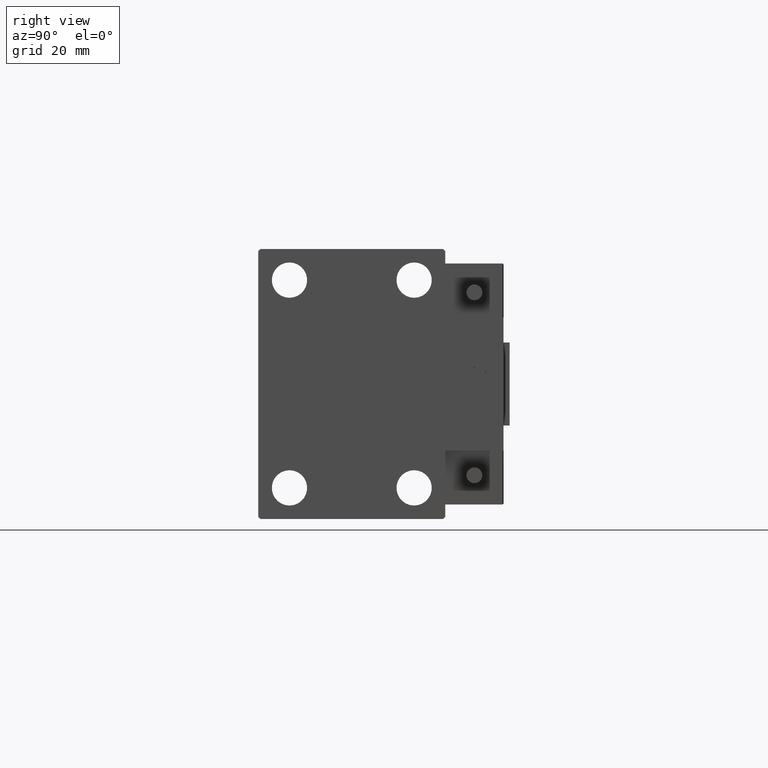
[diagram: clean part render]
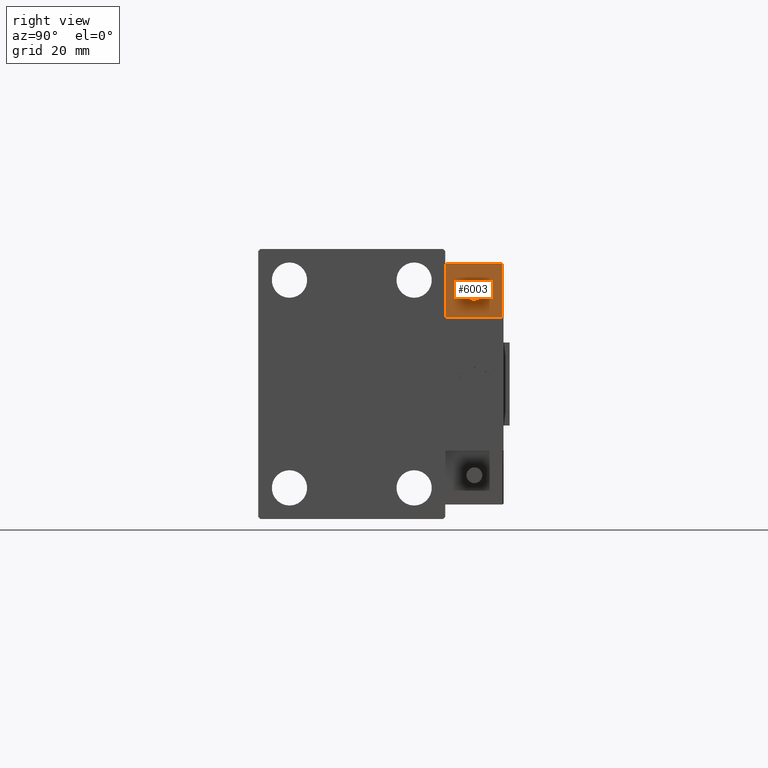
[diagram: same view with one face highlighted and labeled with its STEP entity id]
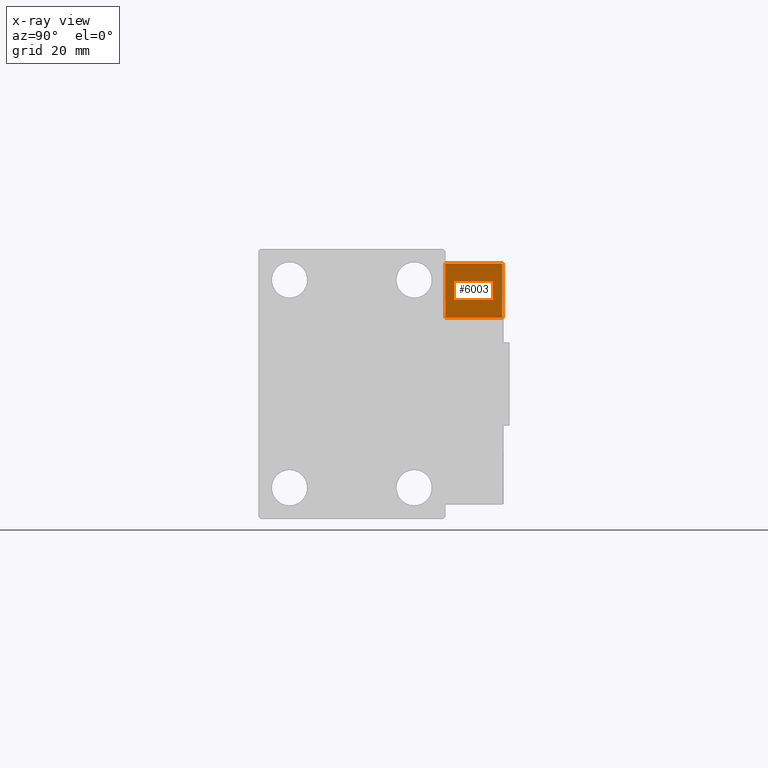
[diagram: x-ray of the same camera — body ghosted, the highlighted face saturated]
A machine part, right view. The second image highlights one B-rep face of the part: STEP entity #6003.
The next image is the same camera in x-ray: the body ghosted, the highlighted face saturated — about 6% of this face is hidden behind the body in this view.
In plain terms, the highlighted planar face has unit normal (-1, 0, 0).
Its self-contained STEP definition (entity closure, byte-faithful):
#1135 = DIRECTION ( 'NONE',  ( -0.000000000000000000, -0.000000000000000000, -1.000000000000000000 ) ) ;
#5024 = VECTOR ( 'NONE', #42310, 1000.000000000000000 ) ;
#5439 = EDGE_CURVE ( 'NONE', #42034, #23815, #49189, .T. ) ;
#6003 = ADVANCED_FACE ( 'NONE', ( #35620 ), #28253, .F. ) ;
#6301 = VECTOR ( 'NONE', #1135, 1000.000000000000000 ) ;
#6504 = CARTESIAN_POINT ( 'NONE',  ( -26.99999999999993605, 20.00000000000002132, 13.70000000000000107 ) ) ;
#10511 = ORIENTED_EDGE ( 'NONE', *, *, #20755, .T. ) ;
#10774 = ORIENTED_EDGE ( 'NONE', *, *, #5439, .T. ) ;
#11208 = CARTESIAN_POINT ( 'NONE',  ( -26.99999999999994671, 7.000000000000005329, 13.70000000000000107 ) ) ;
#13212 = CARTESIAN_POINT ( 'NONE',  ( -26.99999999999993605, 20.00000000000002132, 14.00000000000000000 ) ) ;
#13238 = EDGE_LOOP ( 'NONE', ( #31552, #29089, #10774, #10511 ) ) ;
#13437 = LINE ( 'NONE', #41779, #5024 ) ;
#15939 = CARTESIAN_POINT ( 'NONE',  ( -26.99999999999993605, 20.00000000000002132, 14.00000000000000000 ) ) ;
#16585 = EDGE_CURVE ( 'NONE', #27380, #42034, #13437, .T. ) ;
#19348 = DIRECTION ( 'NONE',  ( 8.006416042969869188E-16, 1.000000000000000000, 0.000000000000000000 ) ) ;
#20576 = CARTESIAN_POINT ( 'NONE',  ( -26.99999999999994671, 7.000000000000005329, 0.000000000000000000 ) ) ;
#20755 = EDGE_CURVE ( 'NONE', #23815, #45316, #50860, .T. ) ;
#23815 = VERTEX_POINT ( 'NONE', #25016 ) ;
#25016 = CARTESIAN_POINT ( 'NONE',  ( -26.99999999999993605, 20.00000000000002132, 0.000000000000000000 ) ) ;
#25122 = EDGE_CURVE ( 'NONE', #27380, #45316, #51542, .T. ) ;
#26162 = DIRECTION ( 'NONE',  ( -8.006416042969869188E-16, -1.000000000000000000, 0.000000000000000000 ) ) ;
#27380 = VERTEX_POINT ( 'NONE', #11208 ) ;
#28253 = PLANE ( 'NONE',  #49096 ) ;
#29089 = ORIENTED_EDGE ( 'NONE', *, *, #16585, .T. ) ;
#31166 = DIRECTION ( 'NONE',  ( 1.000000000000000000, -8.006416042969869188E-16, 0.000000000000000000 ) ) ;
#31552 = ORIENTED_EDGE ( 'NONE', *, *, #25122, .F. ) ;
#35620 = FACE_OUTER_BOUND ( 'NONE', #13238, .T. ) ;
#37010 = VECTOR ( 'NONE', #26162, 1000.000000000000000 ) ;
#38392 = DIRECTION ( 'NONE',  ( -0.000000000000000000, -0.000000000000000000, -1.000000000000000000 ) ) ;
#41779 = CARTESIAN_POINT ( 'NONE',  ( -26.99999999999993605, 20.00000000000002132, 13.70000000000000107 ) ) ;
#42034 = VERTEX_POINT ( 'NONE', #6504 ) ;
#42310 = DIRECTION ( 'NONE',  ( 8.006416042969869188E-16, 1.000000000000000000, -0.000000000000000000 ) ) ;
#45316 = VERTEX_POINT ( 'NONE', #20576 ) ;
#48112 = VECTOR ( 'NONE', #38392, 1000.000000000000000 ) ;
#49096 = AXIS2_PLACEMENT_3D ( 'NONE', #15939, #31166, #19348 ) ;
#49189 = LINE ( 'NONE', #13212, #6301 ) ;
#50067 = CARTESIAN_POINT ( 'NONE',  ( -26.99999999999993605, 20.00000000000002132, 0.000000000000000000 ) ) ;
#50497 = CARTESIAN_POINT ( 'NONE',  ( -26.99999999999994671, 7.000000000000005329, 14.00000000000000000 ) ) ;
#50860 = LINE ( 'NONE', #50067, #37010 ) ;
#51542 = LINE ( 'NONE', #50497, #48112 ) ;